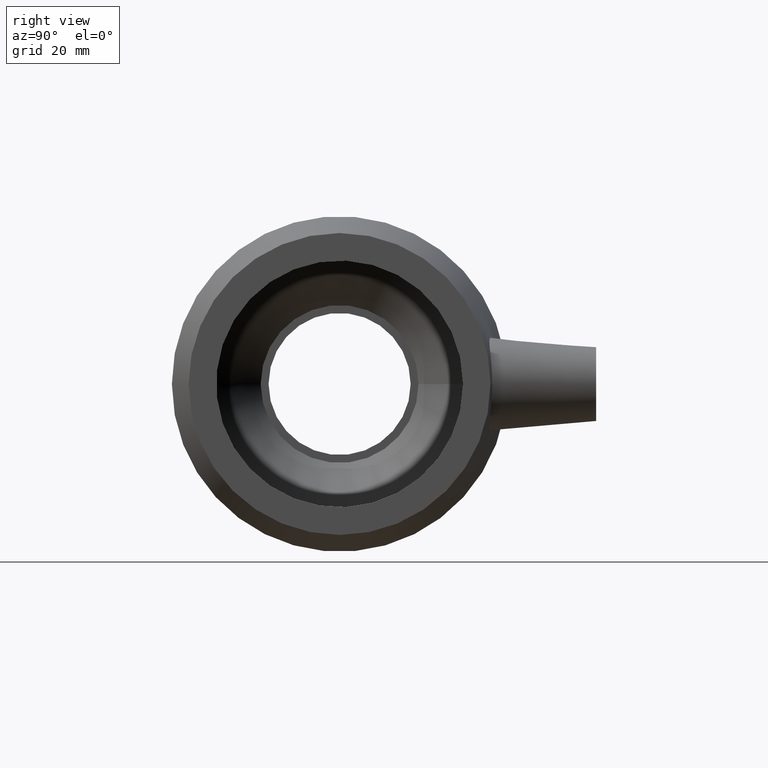
[diagram: clean part render]
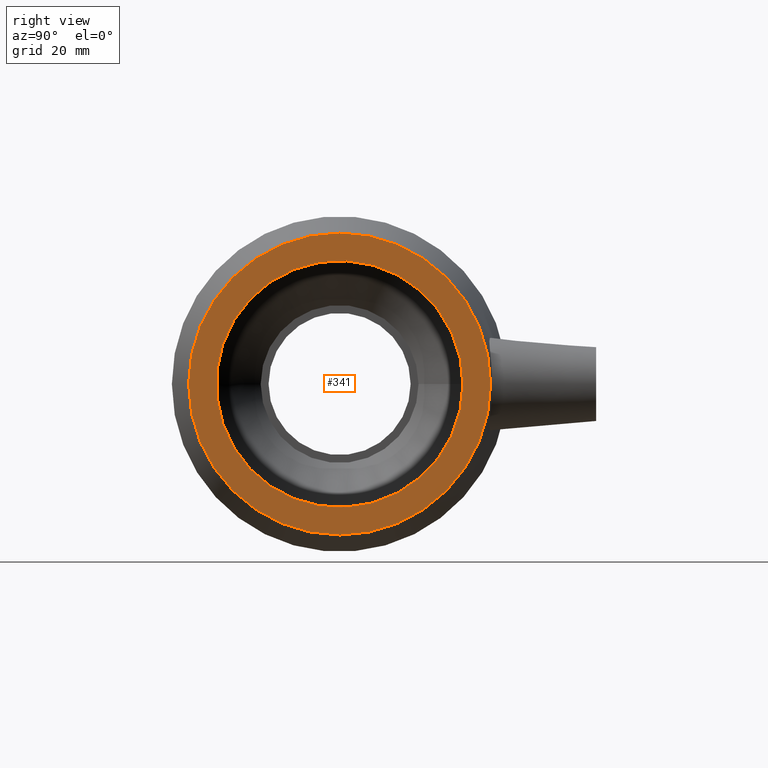
[diagram: same view with one face highlighted and labeled with its STEP entity id]
A machine part, right view. The second image highlights one B-rep face of the part: STEP entity #341.
In plain terms, the highlighted planar face has unit normal (1, 0, 0).
Its self-contained STEP definition (entity closure, byte-faithful):
#40=FACE_BOUND('',#130,.T.);
#83=FACE_OUTER_BOUND('',#129,.T.);
#129=EDGE_LOOP('',(#282));
#130=EDGE_LOOP('',(#283));
#174=CIRCLE('',#388,30.6);
#175=CIRCLE('',#390,25.);
#205=VERTEX_POINT('',#655);
#206=VERTEX_POINT('',#658);
#236=EDGE_CURVE('',#205,#205,#174,.T.);
#237=EDGE_CURVE('',#206,#206,#175,.T.);
#282=ORIENTED_EDGE('',*,*,#236,.T.);
#283=ORIENTED_EDGE('',*,*,#237,.F.);
#319=PLANE('',#389);
#341=ADVANCED_FACE('',(#83,#40),#319,.T.);
#388=AXIS2_PLACEMENT_3D('',#656,#480,#481);
#389=AXIS2_PLACEMENT_3D('',#657,#482,#483);
#390=AXIS2_PLACEMENT_3D('',#659,#484,#485);
#480=DIRECTION('center_axis',(1.,1.83697019872103E-16,0.));
#481=DIRECTION('ref_axis',(0.,0.,-1.));
#482=DIRECTION('center_axis',(1.,1.83697019872103E-16,0.));
#483=DIRECTION('ref_axis',(0.,0.,-1.));
#484=DIRECTION('center_axis',(1.,1.83697019872103E-16,0.));
#485=DIRECTION('ref_axis',(0.,0.,-1.));
#655=CARTESIAN_POINT('',(50.,30.6,0.));
#656=CARTESIAN_POINT('Origin',(50.,1.83697019872103E-14,0.));
#657=CARTESIAN_POINT('Origin',(50.,25.,0.));
#658=CARTESIAN_POINT('',(50.,25.,0.));
#659=CARTESIAN_POINT('Origin',(50.,1.83697019872103E-14,0.));